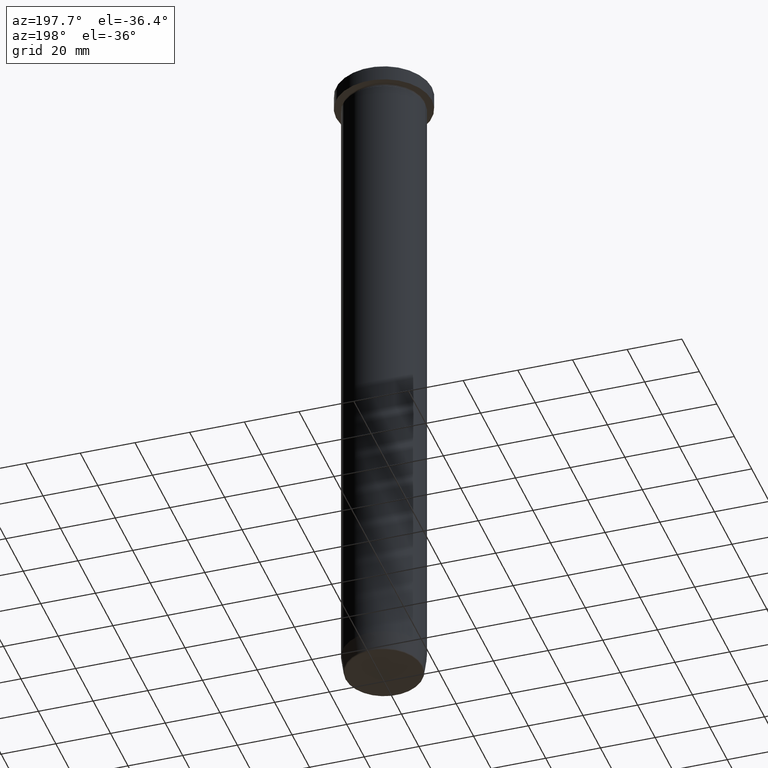
[diagram: clean part render]
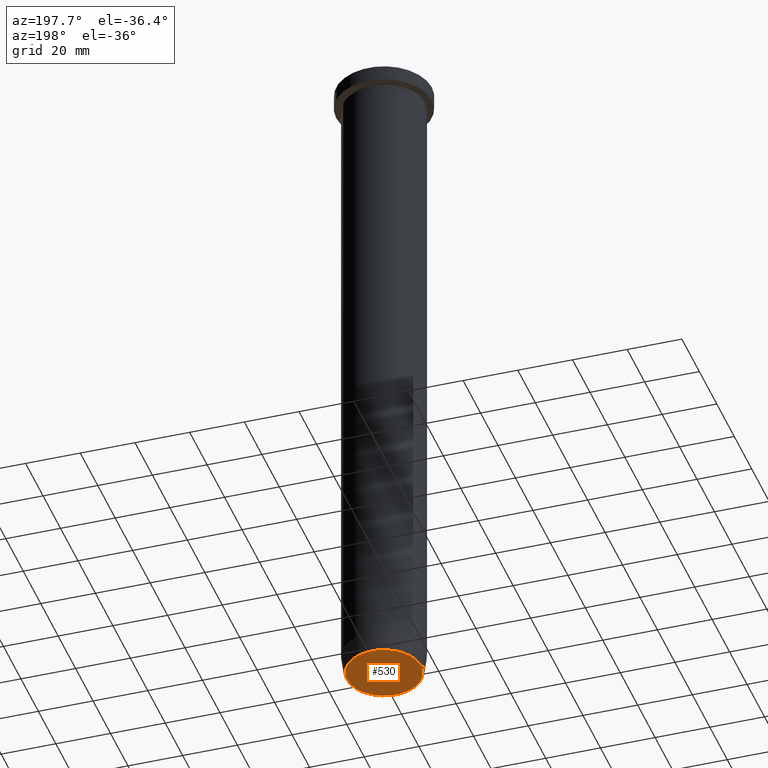
[diagram: same view with one face highlighted and labeled with its STEP entity id]
A machine part, auxiliary view. The second image highlights one B-rep face of the part: STEP entity #530.
In plain terms, the highlighted planar face has unit normal (0, -0, 1).
Its self-contained STEP definition (entity closure, byte-faithful):
#21 = EDGE_LOOP ( 'NONE', ( #573, #477 ) ) ;
#25 = DIRECTION ( 'NONE',  ( 1.000000000000000000, 0.000000000000000000, 0.000000000000000000 ) ) ;
#34 = CARTESIAN_POINT ( 'NONE',  ( 0.000000000000000000, 0.000000000000000000, -250.0000000000000000 ) ) ;
#87 = DIRECTION ( 'NONE',  ( 1.000000000000000000, 0.000000000000000000, 0.000000000000000000 ) ) ;
#92 = AXIS2_PLACEMENT_3D ( 'NONE', #34, #501, #87 ) ;
#125 = DIRECTION ( 'NONE',  ( 1.000000000000000000, 0.000000000000000000, 0.000000000000000000 ) ) ;
#155 = CARTESIAN_POINT ( 'NONE',  ( 13.58157078817513863, 0.000000000000000000, -250.0000000000000000 ) ) ;
#162 = CIRCLE ( 'NONE', #465, 13.58157078817513863 ) ;
#192 = VERTEX_POINT ( 'NONE', #402 ) ;
#233 = AXIS2_PLACEMENT_3D ( 'NONE', #584, #532, #125 ) ;
#242 = CIRCLE ( 'NONE', #92, 13.58157078817513863 ) ;
#257 = VERTEX_POINT ( 'NONE', #155 ) ;
#362 = FACE_OUTER_BOUND ( 'NONE', #21, .T. ) ;
#402 = CARTESIAN_POINT ( 'NONE',  ( -13.58157078817513863, 1.693580934830242487E-15, -250.0000000000000000 ) ) ;
#421 = EDGE_CURVE ( 'NONE', #192, #257, #162, .T. ) ;
#446 = CARTESIAN_POINT ( 'NONE',  ( 0.000000000000000000, 0.000000000000000000, -250.0000000000000000 ) ) ;
#465 = AXIS2_PLACEMENT_3D ( 'NONE', #446, #490, #25 ) ;
#477 = ORIENTED_EDGE ( 'NONE', *, *, #421, .T. ) ;
#490 = DIRECTION ( 'NONE',  ( 0.000000000000000000, 0.000000000000000000, -1.000000000000000000 ) ) ;
#501 = DIRECTION ( 'NONE',  ( 0.000000000000000000, 0.000000000000000000, -1.000000000000000000 ) ) ;
#509 = EDGE_CURVE ( 'NONE', #257, #192, #242, .T. ) ;
#530 = ADVANCED_FACE ( 'NONE', ( #362 ), #542, .F. ) ;
#532 = DIRECTION ( 'NONE',  ( 0.000000000000000000, -0.000000000000000000, 1.000000000000000000 ) ) ;
#542 = PLANE ( 'NONE',  #233 ) ;
#573 = ORIENTED_EDGE ( 'NONE', *, *, #509, .T. ) ;
#584 = CARTESIAN_POINT ( 'NONE',  ( 0.000000000000000000, 2.081899558550500043E-14, -250.0000000000000000 ) ) ;